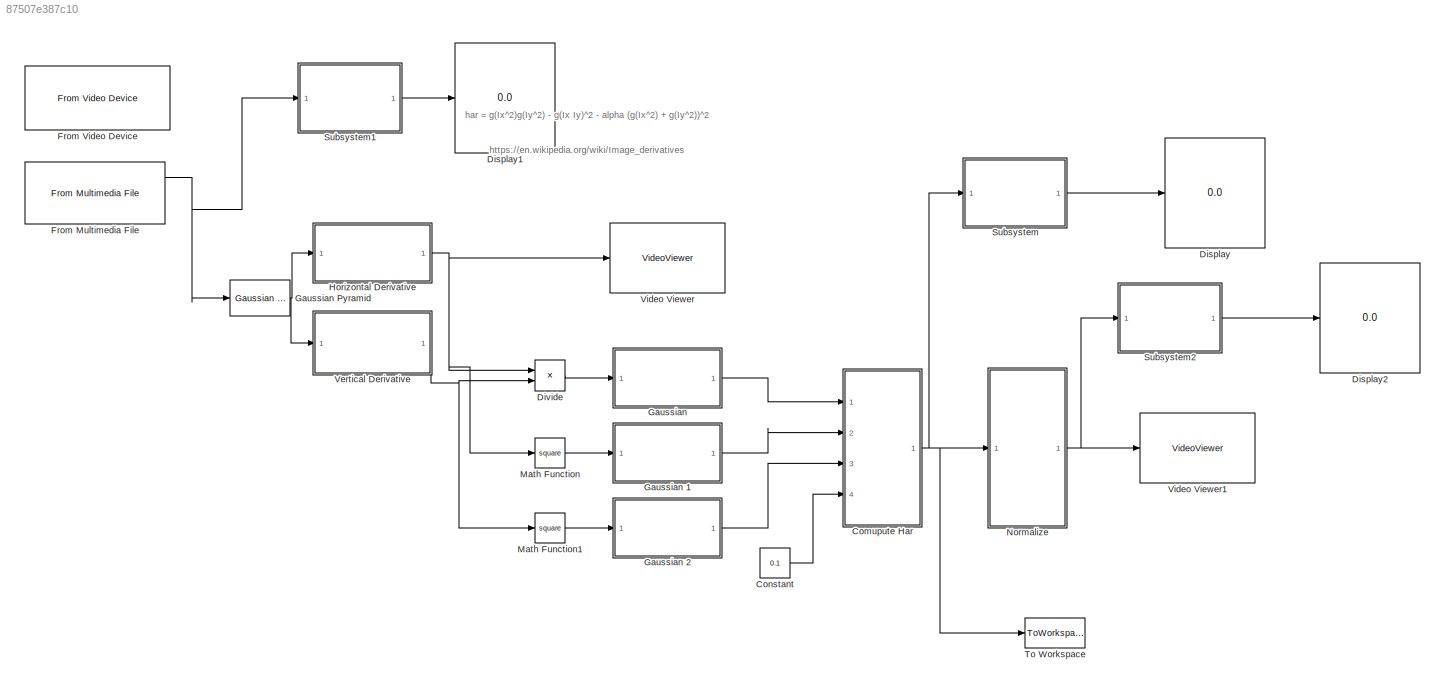
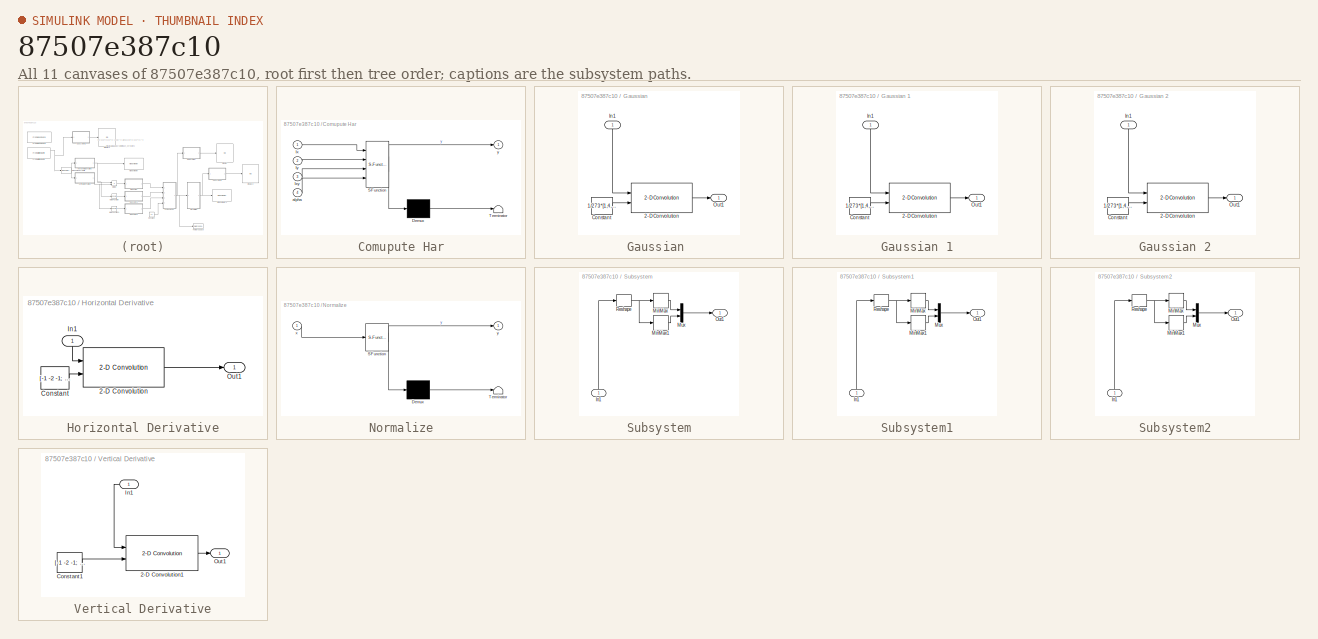
[diagram: thumbnail index - all 11 canvases of the model, root first then tree order]
MODEL slx_87507e387c10
KIND model
CONFIG AbsTol = auto
CONFIG EnableMultiTasking = off
CONFIG FixedStep = auto
CONFIG MaxStep = auto
CONFIG MinStep = auto
CONFIG RelTol = 1e-3
CONFIG SampleTimeConstraint = Unconstrained
CONFIG Solver = FixedStepDiscrete
CONFIG SolverName = FixedStepDiscrete
CONFIG StartTime = 0.0
CONFIG StopTime = 10.0
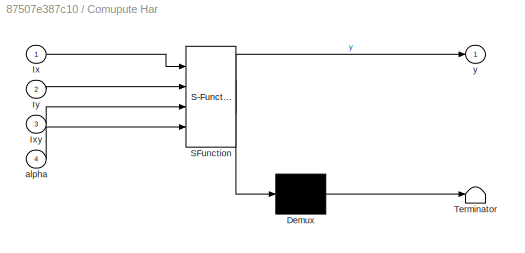
BLOCK [SubSystem] Comupute Har
  ErrorFcn = Stateflow.Translate.translate
  PermitHierarchicalResolution = ExplicitOnly
  Ports = [4, 1]
  RequestExecContextInheritance = off
  SFBlockType = MATLAB Function
  TreatAsAtomicUnit = on
  Variant = off
BLOCK [Demux] Comupute Har/ Demux 
  Outputs = 1
  Ports = [1, 1]
BLOCK [S-Function] Comupute Har/ SFunction 
  EnableBusSupport = on
  FunctionName = sf_sfun
  PortCounts = [4 2]
  Ports = [4, 2]
  SFcnIsStateOwnerBlock = off
  SFunctionDeploymentMode = off
  Tag = Stateflow S-Function derivative 2
BLOCK [Terminator] Comupute Har/ Terminator 
BLOCK [Inport] Comupute Har/Ix
  IconDisplay = Port number
BLOCK [Inport] Comupute Har/Ixy
  IconDisplay = Port number
  Port = 3
BLOCK [Inport] Comupute Har/Iy
  IconDisplay = Port number
  Port = 2
BLOCK [Inport] Comupute Har/alpha
  IconDisplay = Port number
  Port = 4
BLOCK [Outport] Comupute Har/y
  IconDisplay = Port number
BLOCK [Constant] Constant
  Value = 0.1
BLOCK [Display] Display
  Decimation = 1
  Ports = [1]
BLOCK [Display] Display1
  Decimation = 1
  Ports = [1]
BLOCK [Display] Display2
  Decimation = 1
  Ports = [1]
BLOCK [Product] Divide
  InputSameDT = off
  Inputs = **
  OutDataTypeStr = Inherit: Inherit via internal rule
  Ports = [2, 1]
  RndMeth = Floor
  SaturateOnIntegerOverflow = off
BLOCK [Reference] From Multimedia File  REF=dspvision/From Multimedia File
  Ports = [0, 3]
  SourceBlock = dspvision/From Multimedia File
  SourceProductBaseCode = VP
  SourceProductName = Computer Vision System Toolbox
  SourceType = From Multimedia File
BLOCK [Reference] From Video Device  REF=imaqlib/From Video Device
  Commented = on
  Ports = [0, 3]
  SourceBlock = imaqlib/From Video Device
  SourceProductBaseCode = IA
  SourceProductName = Image Acquisition Toolbox
  SourceType = From Video Device
  UserDataPersistent = on
BLOCK [SubSystem] Gaussian 
  Ports = [1, 1]
  RequestExecContextInheritance = off
  Variant = off
BLOCK [Reference] Gaussian /2-D Convolution  REF=visionfilter/2-D Convolution
  Ports = [2, 1]
  SourceBlock = visionfilter/2-D Convolution
  SourceProductBaseCode = VP
  SourceProductName = Computer Vision System Toolbox
  SourceType = 2-D Convolution
BLOCK [Constant] Gaussian /Constant
  OutDataTypeStr = single
  Value = 1/273*[1,4,7,4,1;4,16,26,16,4;7,26,41,26,7;4,16,26,16,4;1,4,7,4,1]
BLOCK [Inport] Gaussian /In1
  IconDisplay = Port number
BLOCK [Outport] Gaussian /Out1
  IconDisplay = Port number
BLOCK [SubSystem] Gaussian 1
  Ports = [1, 1]
  RequestExecContextInheritance = off
  Variant = off
BLOCK [Reference] Gaussian 1/2-D Convolution  REF=visionfilter/2-D Convolution
  Ports = [2, 1]
  SourceBlock = visionfilter/2-D Convolution
  SourceProductBaseCode = VP
  SourceProductName = Computer Vision System Toolbox
  SourceType = 2-D Convolution
BLOCK [Constant] Gaussian 1/Constant
  OutDataTypeStr = single
  Value = 1/273*[1,4,7,4,1;4,16,26,16,4;7,26,41,26,7;4,16,26,16,4;1,4,7,4,1]
BLOCK [Inport] Gaussian 1/In1
  IconDisplay = Port number
BLOCK [Outport] Gaussian 1/Out1
  IconDisplay = Port number
BLOCK [SubSystem] Gaussian 2
  Ports = [1, 1]
  RequestExecContextInheritance = off
  Variant = off
BLOCK [Reference] Gaussian 2/2-D Convolution  REF=visionfilter/2-D Convolution
  Ports = [2, 1]
  SourceBlock = visionfilter/2-D Convolution
  SourceProductBaseCode = VP
  SourceProductName = Computer Vision System Toolbox
  SourceType = 2-D Convolution
BLOCK [Constant] Gaussian 2/Constant
  OutDataTypeStr = single
  Value = 1/273*[1,4,7,4,1;4,16,26,16,4;7,26,41,26,7;4,16,26,16,4;1,4,7,4,1]
BLOCK [Inport] Gaussian 2/In1
  IconDisplay = Port number
BLOCK [Outport] Gaussian 2/Out1
  IconDisplay = Port number
BLOCK [Reference] Gaussian Pyramid  REF=visiontransforms/Gaussian
Pyramid
  Commented = on
  Ports = [1, 1]
  SourceBlock = visiontransforms/Gaussian\nPyramid
  SourceProductBaseCode = VP
  SourceProductName = Computer Vision System Toolbox
  SourceType = Gaussian Pyramid
BLOCK [SubSystem] Horizontal Derivative
  Ports = [1, 1]
  RequestExecContextInheritance = off
  Variant = off
BLOCK [Reference] Horizontal Derivative/2-D Convolution  REF=visionfilter/2-D Convolution
  Ports = [2, 1]
  SourceBlock = visionfilter/2-D Convolution
  SourceProductBaseCode = VP
  SourceProductName = Computer Vision System Toolbox
  SourceType = 2-D Convolution
BLOCK [Constant] Horizontal Derivative/Constant
  OutDataTypeStr = single
  Value = [-1 -2 -1; 0 0 0; 1 2 1]
BLOCK [Inport] Horizontal Derivative/In1
  IconDisplay = Port number
BLOCK [Outport] Horizontal Derivative/Out1
  IconDisplay = Port number
BLOCK [Math] Math Function
  Operator = square
  Ports = [1, 1]
BLOCK [Math] Math Function1
  Operator = square
  Ports = [1, 1]
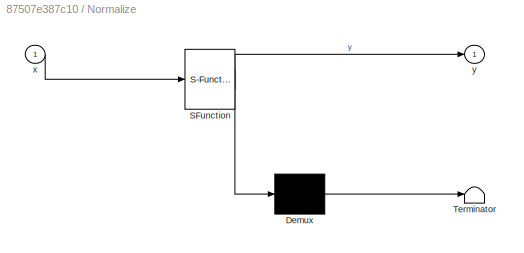
BLOCK [SubSystem] Normalize
  ErrorFcn = Stateflow.Translate.translate
  PermitHierarchicalResolution = ExplicitOnly
  Ports = [1, 1]
  RequestExecContextInheritance = off
  SFBlockType = MATLAB Function
  TreatAsAtomicUnit = on
  Variant = off
BLOCK [Demux] Normalize/ Demux 
  Outputs = 1
  Ports = [1, 1]
BLOCK [S-Function] Normalize/ SFunction 
  EnableBusSupport = on
  FunctionName = sf_sfun
  PortCounts = [1 2]
  Ports = [1, 2]
  SFcnIsStateOwnerBlock = off
  SFunctionDeploymentMode = off
  Tag = Stateflow S-Function derivative 1
BLOCK [Terminator] Normalize/ Terminator 
BLOCK [Inport] Normalize/x
  IconDisplay = Port number
BLOCK [Outport] Normalize/y
  IconDisplay = Port number
BLOCK [SubSystem] Subsystem
  Ports = [1, 1]
  RequestExecContextInheritance = off
  Variant = off
BLOCK [Inport] Subsystem/In1
  IconDisplay = Port number
BLOCK [MinMax] Subsystem/MinMax
  InputSameDT = off
  Ports = [1, 1]
  SaturateOnIntegerOverflow = off
BLOCK [MinMax] Subsystem/MinMax1
  Function = max
  InputSameDT = off
  Ports = [1, 1]
  SaturateOnIntegerOverflow = off
BLOCK [Mux] Subsystem/Mux
  DisplayOption = bar
  Inputs = 2
  Ports = [2, 1]
BLOCK [Outport] Subsystem/Out1
  IconDisplay = Port number
BLOCK [Reshape] Subsystem/Reshape
  Ports = [1, 1]
BLOCK [SubSystem] Subsystem1
  Ports = [1, 1]
  RequestExecContextInheritance = off
  Variant = off
BLOCK [Inport] Subsystem1/In1
  IconDisplay = Port number
BLOCK [MinMax] Subsystem1/MinMax
  InputSameDT = off
  Ports = [1, 1]
  SaturateOnIntegerOverflow = off
BLOCK [MinMax] Subsystem1/MinMax1
  Function = max
  InputSameDT = off
  Ports = [1, 1]
  SaturateOnIntegerOverflow = off
BLOCK [Mux] Subsystem1/Mux
  DisplayOption = bar
  Inputs = 2
  Ports = [2, 1]
BLOCK [Outport] Subsystem1/Out1
  IconDisplay = Port number
BLOCK [Reshape] Subsystem1/Reshape
  Ports = [1, 1]
BLOCK [SubSystem] Subsystem2
  Ports = [1, 1]
  RequestExecContextInheritance = off
  Variant = off
BLOCK [Inport] Subsystem2/In1
  IconDisplay = Port number
BLOCK [MinMax] Subsystem2/MinMax
  InputSameDT = off
  Ports = [1, 1]
  SaturateOnIntegerOverflow = off
BLOCK [MinMax] Subsystem2/MinMax1
  Function = max
  InputSameDT = off
  Ports = [1, 1]
  SaturateOnIntegerOverflow = off
BLOCK [Mux] Subsystem2/Mux
  DisplayOption = bar
  Inputs = 2
  Ports = [2, 1]
BLOCK [Outport] Subsystem2/Out1
  IconDisplay = Port number
BLOCK [Reshape] Subsystem2/Reshape
  Ports = [1, 1]
BLOCK [ToWorkspace] To Workspace
  FixptAsFi = on
  MaxDataPoints = 5
  Ports = [1]
  SampleTime = -1
  Save2DSignal = 3-D array (concatenate along third dimension)
  SaveFormat = Timeseries
  VariableName = simout
BLOCK [SubSystem] Vertical Derivative
  Ports = [1, 1]
  RequestExecContextInheritance = off
  Variant = off
BLOCK [Reference] Vertical Derivative/2-D Convolution1  REF=visionfilter/2-D Convolution
  Ports = [2, 1]
  SourceBlock = visionfilter/2-D Convolution
  SourceProductBaseCode = VP
  SourceProductName = Computer Vision System Toolbox
  SourceType = 2-D Convolution
BLOCK [Constant] Vertical Derivative/Constant1
  OutDataTypeStr = single
  Value = [-1 -2 -1; 0 0 0; 1 2 1]'
BLOCK [Inport] Vertical Derivative/In1
  IconDisplay = Port number
BLOCK [Outport] Vertical Derivative/Out1
  IconDisplay = Port number
BLOCK [VideoViewer] Video Viewer
  Commented = on
  FigPos = [280 769 846 595]
  Ports = [1]
  ScopeSpecificationString = vipscopes.VideoViewerScopeCfg('CurrentConfiguration', extmgr.ConfigurationSet(extmgr.Configuration('Core','General UI',true),extmgr.Configuration('Core','Source UI',true),extmgr.Configuration('Sources','WiredSimulink',true),extmgr.Configuration('Visuals','Video',true),extmgr.Configuration('Tools','Image Navigation Tools',true),extmgr.Configuration('Tools','Image Tool',true),extmgr.Configuration('T...<+101ch>
BLOCK [VideoViewer] Video Viewer1
  FigPos = [1441 1074 1920 954]
  Ports = [1]
  ScopeSpecificationString = vipscopes.VideoViewerScopeCfg('CurrentConfiguration', extmgr.ConfigurationSet(extmgr.Configuration('Core','General UI',true),extmgr.Configuration('Core','Source UI',true),extmgr.Configuration('Sources','WiredSimulink',true),extmgr.Configuration('Visuals','Video',true),extmgr.Configuration('Tools','Image Navigation Tools',true),extmgr.Configuration('Tools','Image Tool',true),extmgr.Configuration('T...<+104ch>
ANNOTATION (root): har = g(Ix^2)g(Iy^2) - g(Ix Iy)^2 - alpha (g(Ix^2) + g(Iy^2))^2
ANNOTATION (root): https://en.wikipedia.org/wiki/Image_derivatives
NET Comupute Har:1 -> Normalize:1, Subsystem:1, To Workspace:1
LINE Constant:1 -> Comupute Har:4
LINE Divide:1 -> Gaussian :1
NET From Multimedia File:1 -> Gaussian Pyramid:1, Subsystem1:1
LINE Gaussian /2-D Convolution:1 -> Gaussian /Out1:1
LINE Gaussian /Constant:1 -> Gaussian /2-D Convolution:2
LINE Gaussian /In1:1 -> Gaussian /2-D Convolution:1
LINE Gaussian 1/2-D Convolution:1 -> Gaussian 1/Out1:1
LINE Gaussian 1/Constant:1 -> Gaussian 1/2-D Convolution:2
LINE Gaussian 1/In1:1 -> Gaussian 1/2-D Convolution:1
LINE Gaussian 1:1 -> Comupute Har:2
LINE Gaussian 2/2-D Convolution:1 -> Gaussian 2/Out1:1
LINE Gaussian 2/Constant:1 -> Gaussian 2/2-D Convolution:2
LINE Gaussian 2/In1:1 -> Gaussian 2/2-D Convolution:1
LINE Gaussian 2:1 -> Comupute Har:3
LINE Gaussian :1 -> Comupute Har:1
NET Gaussian Pyramid:1 -> Horizontal Derivative:1, Vertical Derivative:1
LINE Horizontal Derivative/2-D Convolution:1 -> Horizontal Derivative/Out1:1
LINE Horizontal Derivative/Constant:1 -> Horizontal Derivative/2-D Convolution:2
LINE Horizontal Derivative/In1:1 -> Horizontal Derivative/2-D Convolution:1
NET Horizontal Derivative:1 -> Divide:1, Math Function:1, Video Viewer:1
LINE Math Function1:1 -> Gaussian 2:1
LINE Math Function:1 -> Gaussian 1:1
NET Normalize:1 -> Subsystem2:1, Video Viewer1:1
LINE Subsystem/In1:1 -> Subsystem/Reshape:1
LINE Subsystem/MinMax1:1 -> Subsystem/Mux:2
LINE Subsystem/MinMax:1 -> Subsystem/Mux:1
LINE Subsystem/Mux:1 -> Subsystem/Out1:1
NET Subsystem/Reshape:1 -> Subsystem/MinMax1:1, Subsystem/MinMax:1
LINE Subsystem1/In1:1 -> Subsystem1/Reshape:1
LINE Subsystem1/MinMax1:1 -> Subsystem1/Mux:2
LINE Subsystem1/MinMax:1 -> Subsystem1/Mux:1
LINE Subsystem1/Mux:1 -> Subsystem1/Out1:1
NET Subsystem1/Reshape:1 -> Subsystem1/MinMax1:1, Subsystem1/MinMax:1
LINE Subsystem1:1 -> Display1:1
LINE Subsystem2/In1:1 -> Subsystem2/Reshape:1
LINE Subsystem2/MinMax1:1 -> Subsystem2/Mux:2
LINE Subsystem2/MinMax:1 -> Subsystem2/Mux:1
LINE Subsystem2/Mux:1 -> Subsystem2/Out1:1
NET Subsystem2/Reshape:1 -> Subsystem2/MinMax1:1, Subsystem2/MinMax:1
LINE Subsystem2:1 -> Display2:1
LINE Subsystem:1 -> Display:1
LINE Vertical Derivative/2-D Convolution1:1 -> Vertical Derivative/Out1:1
LINE Vertical Derivative/Constant1:1 -> Vertical Derivative/2-D Convolution1:2
LINE Vertical Derivative/In1:1 -> Vertical Derivative/2-D Convolution1:1
NET Vertical Derivative:1 -> Divide:2, Math Function1:1
note: NET lines group one-source signal fan-out (src -> all destinations, sorted); 1:1 wires keep LINE
CHART Normalize states=1 transitions=1
  STATE_LABEL 'eML_blk_kernel()'
  STATE_LABEL 'SCRIPT:\nfunction y = fcn(x)\n\nw = log(abs(x));\nf = w(:);\nmi = min(f(f > -inf));\nma = max(f(f < inf));\ny = (w-mi)/(ma-mi);\n\n'
CHART Comupute Har states=1 transitions=1
  STATE_LABEL 'eML_blk_kernel()'
  STATE_LABEL 'SCRIPT:\nfunction y = fcn(Ix,Iy,Ixy,alpha)\n\ny = Ix.*Iy-Ixy.^2 - alpha * (Ix+Iy).^2;'
